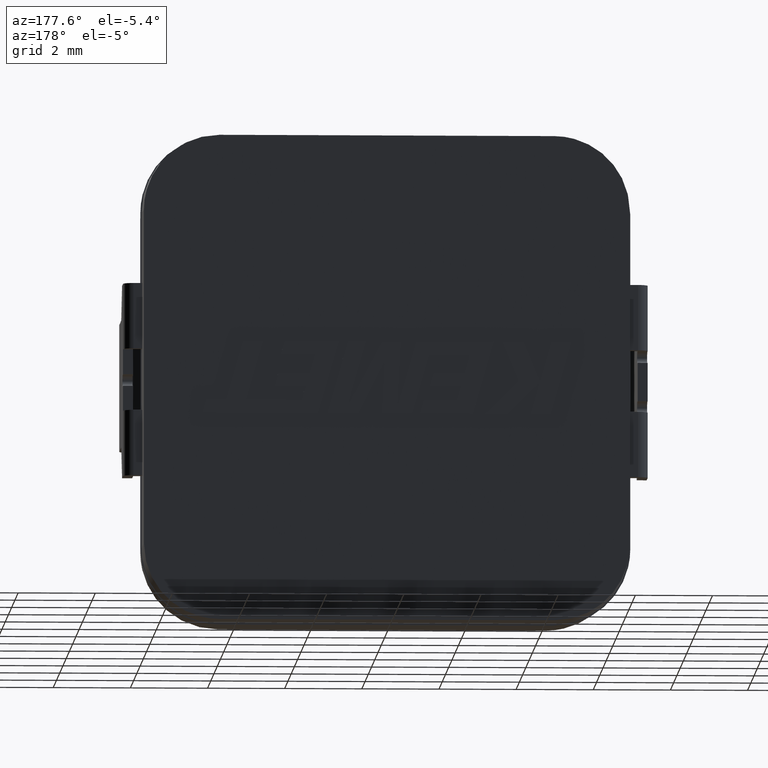
[diagram: clean part render]
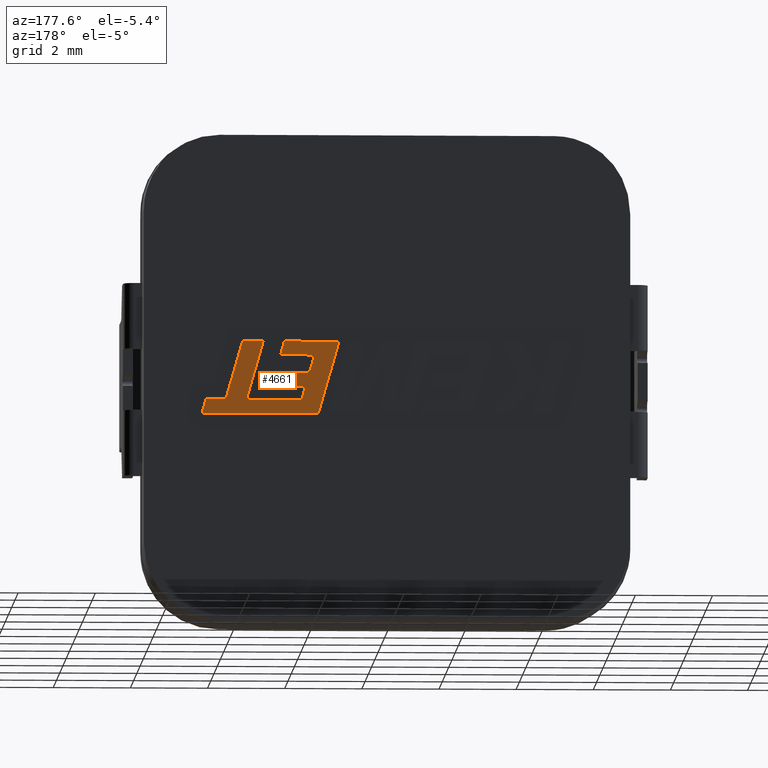
[diagram: same view with one face highlighted and labeled with its STEP entity id]
A machine part, auxiliary view. The second image highlights one B-rep face of the part: STEP entity #4661.
In plain terms, the highlighted planar face has unit normal (-0, 1, 0).
Its self-contained STEP definition (entity closure, byte-faithful):
#67 = EDGE_CURVE ( 'NONE', #4448, #2794, #1227, .T. ) ;
#177 = ORIENTED_EDGE ( 'NONE', *, *, #4552, .T. ) ;
#200 = EDGE_CURVE ( 'NONE', #1694, #3387, #5223, .T. ) ;
#288 = CARTESIAN_POINT ( 'NONE',  ( 3.738793665879458050, 3.500700000000000145, 0.9385183917509849483 ) ) ;
#317 = VERTEX_POINT ( 'NONE', #336 ) ;
#336 = CARTESIAN_POINT ( 'NONE',  ( 2.008172623111232014, 3.500700000000000145, 0.1148941793386038662 ) ) ;
#360 = CARTESIAN_POINT ( 'NONE',  ( 2.912692473989623387, 3.500700000000000145, -0.2320427524349343573 ) ) ;
#383 = VERTEX_POINT ( 'NONE', #3838 ) ;
#406 = VECTOR ( 'NONE', #3776, 1000.000000000000114 ) ;
#421 = CARTESIAN_POINT ( 'NONE',  ( 1.239076203125765607, 3.500700000000000145, 0.9385183917509980489 ) ) ;
#559 = VECTOR ( 'NONE', #5095, 1000.000000000000000 ) ;
#586 = FACE_OUTER_BOUND ( 'NONE', #5129, .T. ) ;
#588 = DIRECTION ( 'NONE',  ( 0.2745159998572664350, 0.0000000000000000000, -0.9615825319869144572 ) ) ;
#695 = CARTESIAN_POINT ( 'NONE',  ( 2.813579050991902974, 3.500700000000000145, 0.1148941793386038662 ) ) ;
#703 = CARTESIAN_POINT ( 'NONE',  ( 1.239076203125765607, 3.500700000000000145, 0.9385183917509980489 ) ) ;
#778 = VECTOR ( 'NONE', #3165, 1000.000000000000000 ) ;
#792 = VECTOR ( 'NONE', #5576, 1000.000000000000114 ) ;
#866 = ORIENTED_EDGE ( 'NONE', *, *, #3422, .T. ) ;
#923 = ORIENTED_EDGE ( 'NONE', *, *, #5559, .T. ) ;
#993 = VECTOR ( 'NONE', #2497, 1000.000000000000000 ) ;
#1065 = LINE ( 'NONE', #5593, #6218 ) ;
#1085 = ORIENTED_EDGE ( 'NONE', *, *, #67, .T. ) ;
#1108 = VECTOR ( 'NONE', #5507, 1000.000000000000114 ) ;
#1227 = LINE ( 'NONE', #3218, #778 ) ;
#1268 = DIRECTION ( 'NONE',  ( 0.2729786930695068392, 0.0000000000000000000, -0.9620200793798766581 ) ) ;
#1276 = ORIENTED_EDGE ( 'NONE', *, *, #5109, .T. ) ;
#1295 = VERTEX_POINT ( 'NONE', #360 ) ;
#1339 = EDGE_CURVE ( 'NONE', #2409, #3691, #1770, .T. ) ;
#1415 = CARTESIAN_POINT ( 'NONE',  ( 0.0000000000000000000, 3.500700000000000145, 0.0000000000000000000 ) ) ;
#1416 = VERTEX_POINT ( 'NONE', #2404 ) ;
#1467 = ORIENTED_EDGE ( 'NONE', *, *, #5857, .T. ) ;
#1491 = LINE ( 'NONE', #5589, #1108 ) ;
#1494 = ORIENTED_EDGE ( 'NONE', *, *, #4625, .T. ) ;
#1688 = VECTOR ( 'NONE', #4871, 1000.000000000000000 ) ;
#1694 = VERTEX_POINT ( 'NONE', #3192 ) ;
#1717 = CARTESIAN_POINT ( 'NONE',  ( 4.174137077108027505, 3.500700000000000145, -0.5760974845821360546 ) ) ;
#1770 = LINE ( 'NONE', #421, #6008 ) ;
#1857 = LINE ( 'NONE', #5612, #4792 ) ;
#1925 = CARTESIAN_POINT ( 'NONE',  ( 1.778977827846628612, 3.500700000000000145, -0.9385183917511015217 ) ) ;
#2004 = ORIENTED_EDGE ( 'NONE', *, *, #3559, .T. ) ;
#2051 = DIRECTION ( 'NONE',  ( -0.2764273280489710216, 0.0000000000000000000, 0.9610348236706651726 ) ) ;
#2057 = LINE ( 'NONE', #4138, #792 ) ;
#2094 = CARTESIAN_POINT ( 'NONE',  ( 4.792217653126877863, 3.500700000000000145, -0.9385183917510108165 ) ) ;
#2144 = VECTOR ( 'NONE', #3718, 1000.000000000000114 ) ;
#2198 = CARTESIAN_POINT ( 'NONE',  ( 4.688052426222721891, 3.500700000000000145, -0.5760566856281675863 ) ) ;
#2255 = ORIENTED_EDGE ( 'NONE', *, *, #5167, .T. ) ;
#2374 = LINE ( 'NONE', #4122, #2144 ) ;
#2404 = CARTESIAN_POINT ( 'NONE',  ( 4.792217653126877863, 3.500700000000000145, -0.9385183917510108165 ) ) ;
#2409 = VERTEX_POINT ( 'NONE', #703 ) ;
#2497 = DIRECTION ( 'NONE',  ( 0.9999891854650020395, 0.0000000000000000000, 0.004650693823689862859 ) ) ;
#2548 = ORIENTED_EDGE ( 'NONE', *, *, #4125, .T. ) ;
#2571 = ORIENTED_EDGE ( 'NONE', *, *, #4399, .T. ) ;
#2630 = VERTEX_POINT ( 'NONE', #4214 ) ;
#2704 = DIRECTION ( 'NONE',  ( 0.2746918797667244339, 0.0000000000000000000, -0.9615323037684294638 ) ) ;
#2747 = CARTESIAN_POINT ( 'NONE',  ( 3.639566096362274905, 3.500700000000000145, -0.5760974845867873340 ) ) ;
#2794 = VERTEX_POINT ( 'NONE', #1717 ) ;
#2816 = EDGE_CURVE ( 'NONE', #1416, #5741, #5455, .T. ) ;
#2822 = LINE ( 'NONE', #5158, #559 ) ;
#2874 = CARTESIAN_POINT ( 'NONE',  ( 2.208762302063021377, 3.500700000000000145, -0.5811712973852583008 ) ) ;
#2929 = EDGE_CURVE ( 'NONE', #1295, #1694, #2822, .T. ) ;
#3042 = LINE ( 'NONE', #1925, #5657 ) ;
#3063 = CARTESIAN_POINT ( 'NONE',  ( 2.657232563049946705, 3.500700000000000145, 0.9385183917509980489 ) ) ;
#3072 = VECTOR ( 'NONE', #5470, 1000.000000000000000 ) ;
#3074 = AXIS2_PLACEMENT_3D ( 'NONE', #1415, #3835, #5272 ) ;
#3101 = LINE ( 'NONE', #4145, #5785 ) ;
#3165 = DIRECTION ( 'NONE',  ( 0.2762437428917342563, 0.0000000000000000000, -0.9610876102172816182 ) ) ;
#3167 = DIRECTION ( 'NONE',  ( 1.000000000000000000, 0.0000000000000000000, -1.249060889481360700E-14 ) ) ;
#3171 = ORIENTED_EDGE ( 'NONE', *, *, #2929, .T. ) ;
#3192 = CARTESIAN_POINT ( 'NONE',  ( 2.107171899589308506, 3.500700000000000145, -0.2320427524349343573 ) ) ;
#3218 = CARTESIAN_POINT ( 'NONE',  ( 3.738793665879458050, 3.500700000000000145, 0.9385183917509849483 ) ) ;
#3287 = LINE ( 'NONE', #5385, #993 ) ;
#3387 = VERTEX_POINT ( 'NONE', #2874 ) ;
#3422 = EDGE_CURVE ( 'NONE', #5834, #2630, #4826, .T. ) ;
#3490 = CARTESIAN_POINT ( 'NONE',  ( 2.758583257832146529, 3.500700000000000145, 0.5813425171681738668 ) ) ;
#3512 = LINE ( 'NONE', #4347, #1688 ) ;
#3559 = EDGE_CURVE ( 'NONE', #5741, #2409, #3042, .T. ) ;
#3640 = VECTOR ( 'NONE', #5827, 1000.000000000000114 ) ;
#3691 = VERTEX_POINT ( 'NONE', #3063 ) ;
#3718 = DIRECTION ( 'NONE',  ( 0.2762033010289102752, 0.0000000000000000000, -0.9610992334305200613 ) ) ;
#3776 = DIRECTION ( 'NONE',  ( 0.2793947940814909825, 0.0000000000000000000, -0.9601763114346038019 ) ) ;
#3835 = DIRECTION ( 'NONE',  ( -0.0000000000000000000, 1.000000000000000000, 0.0000000000000000000 ) ) ;
#3838 = CARTESIAN_POINT ( 'NONE',  ( 3.068924815412259921, 3.500700000000000145, -0.5787513911684096790 ) ) ;
#3891 = VECTOR ( 'NONE', #3167, 1000.000000000000000 ) ;
#4109 = CARTESIAN_POINT ( 'NONE',  ( 1.875009293306912017, 3.500700000000000145, 0.5813425171681803061 ) ) ;
#4122 = CARTESIAN_POINT ( 'NONE',  ( 4.688052426222721891, 3.500700000000000145, -0.5760566856281675863 ) ) ;
#4125 = EDGE_CURVE ( 'NONE', #4476, #317, #5190, .T. ) ;
#4126 = DIRECTION ( 'NONE',  ( 1.000000000000000000, 0.0000000000000000000, 0.0000000000000000000 ) ) ;
#4138 = CARTESIAN_POINT ( 'NONE',  ( 4.174137077108027505, 3.500700000000000145, -0.5760974845821360546 ) ) ;
#4145 = CARTESIAN_POINT ( 'NONE',  ( 2.008172623111232014, 3.500700000000000145, 0.1148941793386038662 ) ) ;
#4214 = CARTESIAN_POINT ( 'NONE',  ( 3.204097123961164861, 3.500700000000000145, 0.9385183917509914986 ) ) ;
#4284 = VECTOR ( 'NONE', #588, 1000.000000000000114 ) ;
#4286 = VERTEX_POINT ( 'NONE', #2198 ) ;
#4300 = ORIENTED_EDGE ( 'NONE', *, *, #5467, .T. ) ;
#4347 = CARTESIAN_POINT ( 'NONE',  ( 2.758583257832146529, 3.500700000000000145, 0.5813425171681738668 ) ) ;
#4399 = EDGE_CURVE ( 'NONE', #3387, #383, #1491, .T. ) ;
#4448 = VERTEX_POINT ( 'NONE', #288 ) ;
#4471 = LINE ( 'NONE', #6041, #3891 ) ;
#4476 = VERTEX_POINT ( 'NONE', #4109 ) ;
#4549 = VERTEX_POINT ( 'NONE', #695 ) ;
#4552 = EDGE_CURVE ( 'NONE', #317, #4549, #3101, .T. ) ;
#4625 = EDGE_CURVE ( 'NONE', #4549, #1295, #1857, .T. ) ;
#4661 = ADVANCED_FACE ( 'NONE', ( #586 ), #5169, .T. ) ;
#4693 = DIRECTION ( 'NONE',  ( 1.000000000000000000, 0.0000000000000000000, 0.0000000000000000000 ) ) ;
#4792 = VECTOR ( 'NONE', #2704, 1000.000000000000114 ) ;
#4826 = LINE ( 'NONE', #5891, #3640 ) ;
#4871 = DIRECTION ( 'NONE',  ( -1.000000000000000000, 0.0000000000000000000, 7.386927795987963789E-15 ) ) ;
#4984 = ORIENTED_EDGE ( 'NONE', *, *, #200, .T. ) ;
#5095 = DIRECTION ( 'NONE',  ( -1.000000000000000000, 0.0000000000000000000, 0.0000000000000000000 ) ) ;
#5109 = EDGE_CURVE ( 'NONE', #2794, #4286, #2057, .T. ) ;
#5129 = EDGE_LOOP ( 'NONE', ( #2571, #923, #866, #5968, #1085, #1276, #2255, #5524, #2004, #6149, #1467, #4300, #2548, #177, #1494, #3171, #4984 ) ) ;
#5154 = EDGE_CURVE ( 'NONE', #2630, #4448, #4471, .T. ) ;
#5158 = CARTESIAN_POINT ( 'NONE',  ( 2.912692473989623387, 3.500700000000000145, -0.2320427524349343573 ) ) ;
#5167 = EDGE_CURVE ( 'NONE', #4286, #1416, #2374, .T. ) ;
#5169 = PLANE ( 'NONE',  #3074 ) ;
#5190 = LINE ( 'NONE', #5378, #4284 ) ;
#5223 = LINE ( 'NONE', #6144, #406 ) ;
#5272 = DIRECTION ( 'NONE',  ( 1.000000000000000000, 0.0000000000000000000, 0.0000000000000000000 ) ) ;
#5378 = CARTESIAN_POINT ( 'NONE',  ( 1.875009293306912017, 3.500700000000000145, 0.5813425171681803061 ) ) ;
#5385 = CARTESIAN_POINT ( 'NONE',  ( 3.068924815412259921, 3.500700000000000145, -0.5787513911684096790 ) ) ;
#5455 = LINE ( 'NONE', #2094, #3072 ) ;
#5467 = EDGE_CURVE ( 'NONE', #5620, #4476, #3512, .T. ) ;
#5470 = DIRECTION ( 'NONE',  ( -1.000000000000000000, 0.0000000000000000000, 0.0000000000000000000 ) ) ;
#5507 = DIRECTION ( 'NONE',  ( 0.9999960426590095430, 0.0000000000000000000, 0.002813301676019472428 ) ) ;
#5524 = ORIENTED_EDGE ( 'NONE', *, *, #2816, .T. ) ;
#5559 = EDGE_CURVE ( 'NONE', #383, #5834, #3287, .T. ) ;
#5576 = DIRECTION ( 'NONE',  ( 0.9999999968487351953, 0.0000000000000000000, 7.938847109787028767E-05 ) ) ;
#5589 = CARTESIAN_POINT ( 'NONE',  ( 2.208762302063021377, 3.500700000000000145, -0.5811712973852583008 ) ) ;
#5593 = CARTESIAN_POINT ( 'NONE',  ( 2.657232563049946705, 3.500700000000000145, 0.9385183917509980489 ) ) ;
#5612 = CARTESIAN_POINT ( 'NONE',  ( 2.813579050991902974, 3.500700000000000145, 0.1148941793386038662 ) ) ;
#5620 = VERTEX_POINT ( 'NONE', #3490 ) ;
#5657 = VECTOR ( 'NONE', #2051, 1000.000000000000114 ) ;
#5741 = VERTEX_POINT ( 'NONE', #6079 ) ;
#5785 = VECTOR ( 'NONE', #4126, 1000.000000000000000 ) ;
#5827 = DIRECTION ( 'NONE',  ( -0.2763173343569915730, 0.0000000000000000000, 0.9610664548998921752 ) ) ;
#5834 = VERTEX_POINT ( 'NONE', #2747 ) ;
#5857 = EDGE_CURVE ( 'NONE', #3691, #5620, #1065, .T. ) ;
#5891 = CARTESIAN_POINT ( 'NONE',  ( 3.639566096362274905, 3.500700000000000145, -0.5760974845867873340 ) ) ;
#5968 = ORIENTED_EDGE ( 'NONE', *, *, #5154, .T. ) ;
#6008 = VECTOR ( 'NONE', #4693, 1000.000000000000000 ) ;
#6041 = CARTESIAN_POINT ( 'NONE',  ( 3.204097123961164861, 3.500700000000000145, 0.9385183917509914986 ) ) ;
#6079 = CARTESIAN_POINT ( 'NONE',  ( 1.778977827846628612, 3.500700000000000145, -0.9385183917511015217 ) ) ;
#6144 = CARTESIAN_POINT ( 'NONE',  ( 2.107171899589308506, 3.500700000000000145, -0.2320427524349343573 ) ) ;
#6149 = ORIENTED_EDGE ( 'NONE', *, *, #1339, .T. ) ;
#6218 = VECTOR ( 'NONE', #1268, 999.9999999999998863 ) ;